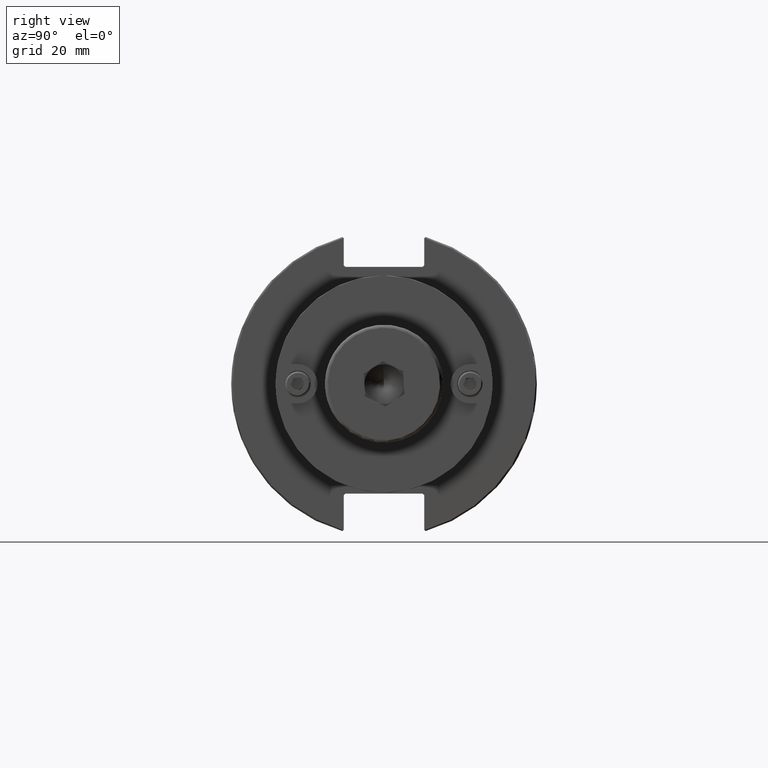
[diagram: clean part render]
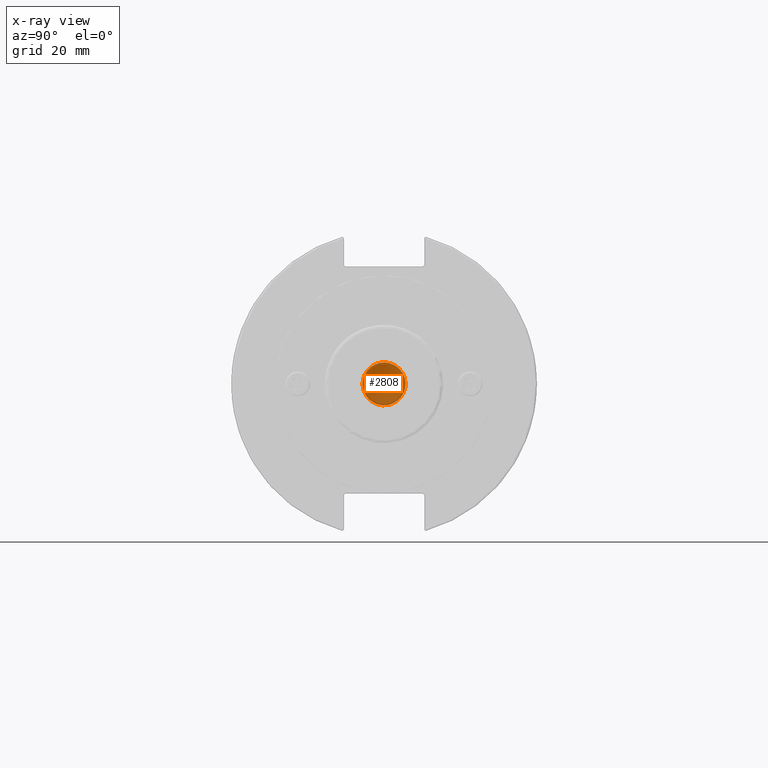
[diagram: x-ray — body ghosted, one internal face saturated and labeled with its STEP entity id]
A machine part, right view, then the same camera in x-ray: the body is ghosted and one INTERNAL B-rep face — a face not visible from any outside direction — is saturated and labeled: STEP entity #2808.
In plain terms, the highlighted planar face has unit normal (-1, -0, 0).
Its self-contained STEP definition (entity closure, byte-faithful):
#687=CIRCLE('',#3200,6.93750000000001);
#826=FACE_OUTER_BOUND('',#987,.T.);
#987=EDGE_LOOP('',(#2442));
#1534=VERTEX_POINT('',#5289);
#1844=EDGE_CURVE('',#1534,#1534,#687,.T.);
#2442=ORIENTED_EDGE('',*,*,#1844,.F.);
#2684=PLANE('',#3206);
#2808=ADVANCED_FACE('',(#826),#2684,.T.);
#3200=AXIS2_PLACEMENT_3D('',#5290,#3827,#3828);
#3206=AXIS2_PLACEMENT_3D('',#5302,#3841,#3842);
#3827=DIRECTION('center_axis',(-1.,0.,0.));
#3828=DIRECTION('ref_axis',(0.,-1.,0.));
#3841=DIRECTION('center_axis',(1.,0.,0.));
#3842=DIRECTION('ref_axis',(0.,0.,-1.));
#5289=CARTESIAN_POINT('',(52.,6.93750000000001,-8.49598716908478E-16));
#5290=CARTESIAN_POINT('Origin',(52.,0.,0.));
#5302=CARTESIAN_POINT('Origin',(52.,1.37880508755545E-14,0.));